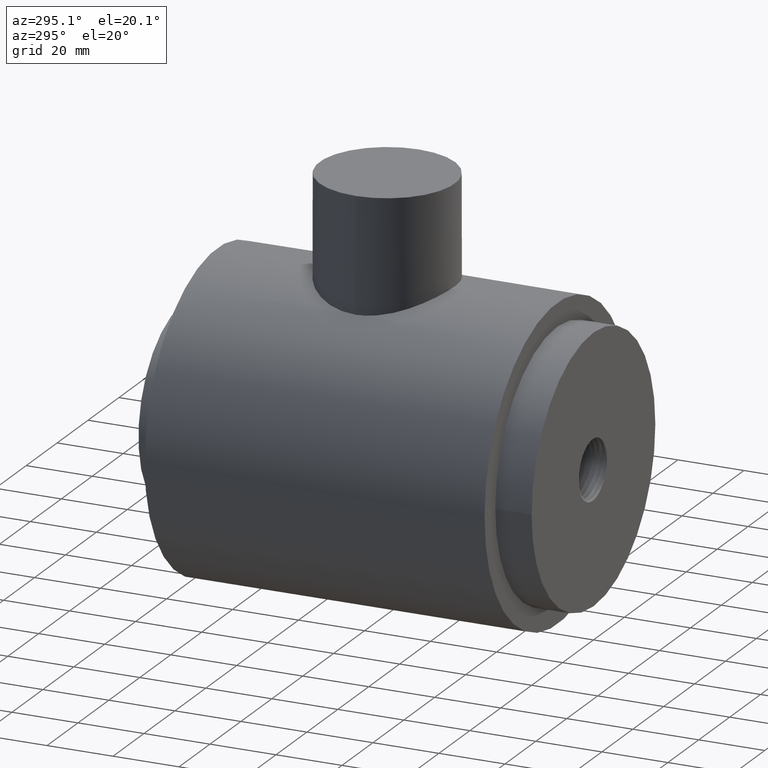
[diagram: clean part render]
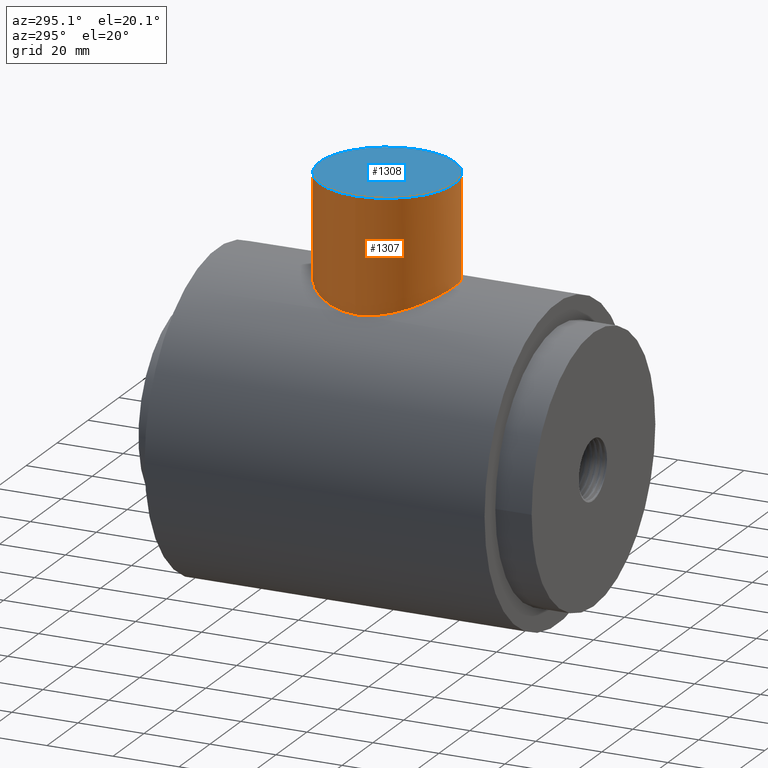
[diagram: same view with the hole feature highlighted: cylindrical wall and planar end face, labeled with their STEP entity ids]
A machine part, auxiliary view. The highlighted faces form one hole feature of diameter 41 mm: the cylindrical wall (entity #1307, orange) and its adjacent planar end face (entity #1308, blue) — they share a circular edge in the B-rep.
Wall:
#91=B_SPLINE_CURVE_WITH_KNOTS('',3,(#5733,#5734,#5735,#5736,#5737,#5738,
#5739,#5740,#5741,#5742,#5743,#5744,#5745,#5746,#5747,#5748,#5749,#5750,
#5751,#5752,#5753,#5754,#5755,#5756,#5757,#5758),.UNSPECIFIED.,.F.,.F.,
(4,2,2,2,2,2,2,2,2,2,2,2,4),(2.08150158605407,2.34044044380816,2.59937930156224,
3.11725701707041,3.64013009458928,3.90156663334871,4.16300317210814,4.42443971086757,
4.68587624962701,5.20874932714587,5.72662704265404,5.98556590040813,6.24450475816221),
 .UNSPECIFIED.);
#92=B_SPLINE_CURVE_WITH_KNOTS('',3,(#5762,#5763,#5764,#5765,#5766,#5767,
#5768,#5769,#5770,#5771,#5772,#5773,#5774,#5775,#5776,#5777,#5778,#5779,
#5780,#5781,#5782,#5783,#5784,#5785,#5786,#5787,#5788),.UNSPECIFIED.,.F.,
 .F.,(4,2,2,2,2,2,3,2,2,2,2,2,4),(6.24450475816221,6.5034436159163,6.76238247367038,
7.28026018917856,7.80313326669742,8.06456980545685,8.32600634421629,8.58744288297572,
8.84887942173515,9.37175249925401,9.88963021476219,10.1485690725163,10.4075079302704),
 .UNSPECIFIED.);
#93=B_SPLINE_CURVE_WITH_KNOTS('',3,(#5796,#5797,#5798,#5799,#5800,#5801,
#5802,#5803,#5804,#5805,#5806,#5807,#5808,#5809,#5810,#5811,#5812,#5813,
#5814,#5815,#5816,#5817,#5818,#5819,#5820,#5821,#5822,#5823,#5824,#5825,
#5826,#5827,#5828,#5829),.UNSPECIFIED.,.F.,.F.,(4,2,2,2,2,2,2,2,2,2,2,2,
2,2,2,2,4),(0.,0.39219322127822,0.784386442556441,1.17657966383466,1.56877288511288,
1.96038675340919,2.3520006217055,2.74361449000181,3.13522835829811,3.52684222659442,
3.91845609489073,4.31006996318704,4.70168383148335,5.09387705276157,5.48607027403979,
5.87826349531801,6.27045671659623),.UNSPECIFIED.);
#94=B_SPLINE_CURVE_WITH_KNOTS('',3,(#5830,#5831,#5832,#5833,#5834,#5835,
#5836,#5837,#5838,#5839,#5840,#5841,#5842,#5843,#5844,#5845,#5846,#5847,
#5848,#5849,#5850,#5851,#5852,#5853,#5854,#5855,#5856,#5857,#5858,#5859,
#5860,#5861,#5862,#5863),.UNSPECIFIED.,.F.,.F.,(4,2,2,2,2,2,2,2,2,2,2,2,
2,2,2,2,4),(6.27045671659623,6.66264993787445,7.05484315915267,7.44703638043089,
7.83922960170911,8.23084347000541,8.62245733830172,9.01407120659803,9.40568507489434,
9.79729894319065,10.188912811487,10.5805266797833,10.9721405480796,11.3643337693578,
11.756526990636,12.1487202119142,12.5409134331925),.UNSPECIFIED.);
#109=FACE_BOUND('',#296,.T.);
#210=FACE_OUTER_BOUND('',#295,.T.);
#295=EDGE_LOOP('',(#1157,#1158,#1159,#1160,#1161));
#296=EDGE_LOOP('',(#1162,#1163));
#389=LINE('',#5794,#473);
#473=VECTOR('',#1701,0.807086614173228);
#498=CIRCLE('',#1421,0.807086614173228);
#616=VERTEX_POINT('',#5731);
#617=VERTEX_POINT('',#5732);
#619=VERTEX_POINT('',#5791);
#620=VERTEX_POINT('',#5793);
#621=VERTEX_POINT('',#5795);
#798=EDGE_CURVE('',#616,#617,#91,.T.);
#801=EDGE_CURVE('',#617,#616,#92,.T.);
#802=EDGE_CURVE('',#619,#619,#498,.T.);
#803=EDGE_CURVE('',#619,#620,#389,.T.);
#804=EDGE_CURVE('',#621,#620,#93,.T.);
#805=EDGE_CURVE('',#620,#621,#94,.T.);
#1157=ORIENTED_EDGE('',*,*,#802,.F.);
#1158=ORIENTED_EDGE('',*,*,#803,.T.);
#1159=ORIENTED_EDGE('',*,*,#804,.F.);
#1160=ORIENTED_EDGE('',*,*,#805,.F.);
#1161=ORIENTED_EDGE('',*,*,#803,.F.);
#1162=ORIENTED_EDGE('',*,*,#798,.T.);
#1163=ORIENTED_EDGE('',*,*,#801,.T.);
#1233=CYLINDRICAL_SURFACE('',#1420,0.807086614173228);
#1307=ADVANCED_FACE('',(#210,#109),#1233,.T.);
#1420=AXIS2_PLACEMENT_3D('',#5790,#1697,#1698);
#1421=AXIS2_PLACEMENT_3D('',#5792,#1699,#1700);
#1697=DIRECTION('center_axis',(0.,0.,1.));
#1698=DIRECTION('ref_axis',(1.,0.,0.));
#1699=DIRECTION('center_axis',(0.,0.,1.));
#1700=DIRECTION('ref_axis',(1.,0.,0.));
#1701=DIRECTION('',(0.,0.,-1.));
#5731=CARTESIAN_POINT('',(0.807086614173229,2.46062992125984,2.9251968503937));
#5732=CARTESIAN_POINT('',(0.807086614173229,2.46062992125984,1.87795275590551));
#5733=CARTESIAN_POINT('Ctrl Pts',(0.807086614173228,2.46062992125984,2.9251968503937));
#5734=CARTESIAN_POINT('Ctrl Pts',(0.807086614173228,2.49461139865539,2.9251968503937));
#5735=CARTESIAN_POINT('Ctrl Pts',(0.804892575235416,2.52942933306709,2.92183556056006));
#5736=CARTESIAN_POINT('Ctrl Pts',(0.796054055324587,2.59804665142261,2.90805407916114));
#5737=CARTESIAN_POINT('Ctrl Pts',(0.789414663972881,2.63184780554451,2.8976394381686));
#5738=CARTESIAN_POINT('Ctrl Pts',(0.764319866982764,2.72823601625747,2.8570191443441));
#5739=CARTESIAN_POINT('Ctrl Pts',(0.74045315171569,2.78574377789112,2.81697434728849));
#5740=CARTESIAN_POINT('Ctrl Pts',(0.693614582431741,2.8764649057353,2.72625321944432));
#5741=CARTESIAN_POINT('Ctrl Pts',(0.667052238342782,2.91621733421141,2.6688478173071));
#5742=CARTESIAN_POINT('Ctrl Pts',(0.63690790475914,2.95663357002237,2.57293419335656));
#5743=CARTESIAN_POINT('Ctrl Pts',(0.628520918396347,2.96701945274968,2.53931075041655));
#5744=CARTESIAN_POINT('Ctrl Pts',(0.617136934627805,2.98083267705337,2.47078925846913));
#5745=CARTESIAN_POINT('Ctrl Pts',(0.614173228346457,2.98425196850394,2.43588406020465));
#5746=CARTESIAN_POINT('Ctrl Pts',(0.614173228346457,2.98425196850394,2.36726554609456));
#5747=CARTESIAN_POINT('Ctrl Pts',(0.617136934627805,2.98083267705337,2.33236034783009));
#5748=CARTESIAN_POINT('Ctrl Pts',(0.628520918396346,2.96701945274968,2.26383885588266));
#5749=CARTESIAN_POINT('Ctrl Pts',(0.63690790475914,2.95663357002237,2.23021541294266));
#5750=CARTESIAN_POINT('Ctrl Pts',(0.667052238342781,2.91621733421141,2.13430178899211));
#5751=CARTESIAN_POINT('Ctrl Pts',(0.693614582431741,2.8764649057353,2.0768963868549));
#5752=CARTESIAN_POINT('Ctrl Pts',(0.74045315171569,2.78574377789112,1.98617525901072));
#5753=CARTESIAN_POINT('Ctrl Pts',(0.764319866982764,2.72823601625747,1.94613046195511));
#5754=CARTESIAN_POINT('Ctrl Pts',(0.789414663972881,2.63184780554451,1.90551016813061));
#5755=CARTESIAN_POINT('Ctrl Pts',(0.796054055324587,2.59804665142261,1.89509552713807));
#5756=CARTESIAN_POINT('Ctrl Pts',(0.804892575235416,2.52942933306709,1.88131404573915));
#5757=CARTESIAN_POINT('Ctrl Pts',(0.807086614173228,2.49461139865539,1.87795275590551));
#5758=CARTESIAN_POINT('Ctrl Pts',(0.807086614173228,2.46062992125984,1.87795275590551));
#5762=CARTESIAN_POINT('Ctrl Pts',(0.807086614173228,2.46062992125984,1.87795275590551));
#5763=CARTESIAN_POINT('Ctrl Pts',(0.807086614173228,2.42664844386429,1.87795275590551));
#5764=CARTESIAN_POINT('Ctrl Pts',(0.804892575235416,2.3918305094526,1.88131404573915));
#5765=CARTESIAN_POINT('Ctrl Pts',(0.796054055324587,2.32321319109708,1.89509552713807));
#5766=CARTESIAN_POINT('Ctrl Pts',(0.789414663972881,2.28941203697518,1.90551016813061));
#5767=CARTESIAN_POINT('Ctrl Pts',(0.764319866982764,2.19302382626221,1.94613046195511));
#5768=CARTESIAN_POINT('Ctrl Pts',(0.74045315171569,2.13551606462856,1.98617525901072));
#5769=CARTESIAN_POINT('Ctrl Pts',(0.693614582431741,2.04479493678439,2.0768963868549));
#5770=CARTESIAN_POINT('Ctrl Pts',(0.667052238342782,2.00504250830827,2.13430178899211));
#5771=CARTESIAN_POINT('Ctrl Pts',(0.63690790475914,1.96462627249731,2.23021541294266));
#5772=CARTESIAN_POINT('Ctrl Pts',(0.628520918396346,1.95424038977,2.26383885588266));
#5773=CARTESIAN_POINT('Ctrl Pts',(0.617136934627805,1.94042716546632,2.33236034783009));
#5774=CARTESIAN_POINT('Ctrl Pts',(0.614173228346457,1.93700787401575,2.36726554609456));
#5775=CARTESIAN_POINT('Ctrl Pts',(0.614173228346457,1.93700787401575,2.40157480314961));
#5776=CARTESIAN_POINT('Ctrl Pts',(0.614173228346457,1.93700787401575,2.43588406020465));
#5777=CARTESIAN_POINT('Ctrl Pts',(0.617136934627805,1.94042716546632,2.47078925846913));
#5778=CARTESIAN_POINT('Ctrl Pts',(0.628520918396346,1.95424038977,2.53931075041655));
#5779=CARTESIAN_POINT('Ctrl Pts',(0.63690790475914,1.96462627249731,2.57293419335656));
#5780=CARTESIAN_POINT('Ctrl Pts',(0.667052238342782,2.00504250830827,2.6688478173071));
#5781=CARTESIAN_POINT('Ctrl Pts',(0.693614582431741,2.04479493678439,2.72625321944432));
#5782=CARTESIAN_POINT('Ctrl Pts',(0.74045315171569,2.13551606462856,2.81697434728849));
#5783=CARTESIAN_POINT('Ctrl Pts',(0.764319866982764,2.19302382626221,2.8570191443441));
#5784=CARTESIAN_POINT('Ctrl Pts',(0.789414663972881,2.28941203697517,2.8976394381686));
#5785=CARTESIAN_POINT('Ctrl Pts',(0.796054055324587,2.32321319109708,2.90805407916114));
#5786=CARTESIAN_POINT('Ctrl Pts',(0.804892575235416,2.3918305094526,2.92183556056006));
#5787=CARTESIAN_POINT('Ctrl Pts',(0.807086614173228,2.42664844386429,2.9251968503937));
#5788=CARTESIAN_POINT('Ctrl Pts',(0.807086614173228,2.46062992125984,2.9251968503937));
#5790=CARTESIAN_POINT('Origin',(5.3380105545221E-32,2.46062992125984,0.));
#5791=CARTESIAN_POINT('',(-0.807086614173228,2.46062992125984,3.03149606299213));
#5792=CARTESIAN_POINT('Origin',(5.3380105545221E-32,2.46062992125984,3.03149606299213));
#5793=CARTESIAN_POINT('',(-0.807086614173228,2.46062992125984,1.66510301337067));
#5794=CARTESIAN_POINT('',(-0.807086614173228,2.46062992125984,0.));
#5795=CARTESIAN_POINT('',(0.807086614173228,2.46062992125984,1.66510301337067));
#5796=CARTESIAN_POINT('Ctrl Pts',(0.807086614173228,2.46062992125984,1.66510301337067));
#5797=CARTESIAN_POINT('Ctrl Pts',(0.807086614173228,2.40916099458291,1.66510301337067));
#5798=CARTESIAN_POINT('Ctrl Pts',(0.802084784334732,2.35620058023945,1.66755777393839));
#5799=CARTESIAN_POINT('Ctrl Pts',(0.781309439414592,2.25134292016892,1.67739216946167));
#5800=CARTESIAN_POINT('Ctrl Pts',(0.765543292032329,2.19944296352252,1.68475845798413));
#5801=CARTESIAN_POINT('Ctrl Pts',(0.724169357321344,2.10027731190028,1.70295221650003));
#5802=CARTESIAN_POINT('Ctrl Pts',(0.698528755250808,2.05291959173878,1.71377227827277));
#5803=CARTESIAN_POINT('Ctrl Pts',(0.639532518726629,1.96548520250776,1.73665079995064));
#5804=CARTESIAN_POINT('Ctrl Pts',(0.606170119998836,1.92540720548512,1.74868673592672));
#5805=CARTESIAN_POINT('Ctrl Pts',(0.535275117993793,1.85451220348007,1.77167264393117));
#5806=CARTESIAN_POINT('Ctrl Pts',(0.495222555664146,1.82115675214401,1.78346410624794));
#5807=CARTESIAN_POINT('Ctrl Pts',(0.407775967090191,1.76213863680678,1.80546624408741));
#5808=CARTESIAN_POINT('Ctrl Pts',(0.360380460333249,1.73647137685438,1.81565870324636));
#5809=CARTESIAN_POINT('Ctrl Pts',(0.261137483685962,1.69506679489168,1.83256591112662));
#5810=CARTESIAN_POINT('Ctrl Pts',(0.209198998711224,1.67929652158112,1.83928301433812));
#5811=CARTESIAN_POINT('Ctrl Pts',(0.10432758524625,1.65853151240926,1.84819965990006));
#5812=CARTESIAN_POINT('Ctrl Pts',(0.0513928961018777,1.65354330708661,1.8503937007874));
#5813=CARTESIAN_POINT('Ctrl Pts',(-0.0513928961018777,1.65354330708661,
1.8503937007874));
#5814=CARTESIAN_POINT('Ctrl Pts',(-0.10432758524625,1.65853151240926,1.84819965990006));
#5815=CARTESIAN_POINT('Ctrl Pts',(-0.209198998711224,1.67929652158112,1.83928301433812));
#5816=CARTESIAN_POINT('Ctrl Pts',(-0.261137483685962,1.69506679489168,1.83256591112662));
#5817=CARTESIAN_POINT('Ctrl Pts',(-0.360380460333249,1.73647137685438,1.81565870324636));
#5818=CARTESIAN_POINT('Ctrl Pts',(-0.407775967090191,1.76213863680678,1.80546624408741));
#5819=CARTESIAN_POINT('Ctrl Pts',(-0.495222555664146,1.82115675214401,1.78346410624794));
#5820=CARTESIAN_POINT('Ctrl Pts',(-0.535275117993793,1.85451220348007,1.77167264393117));
#5821=CARTESIAN_POINT('Ctrl Pts',(-0.606170119998835,1.92540720548512,1.74868673592672));
#5822=CARTESIAN_POINT('Ctrl Pts',(-0.639532518726628,1.96548520250776,1.73665079995064));
#5823=CARTESIAN_POINT('Ctrl Pts',(-0.698528755250807,2.05291959173878,1.71377227827277));
#5824=CARTESIAN_POINT('Ctrl Pts',(-0.724169357321344,2.10027731190028,1.70295221650003));
#5825=CARTESIAN_POINT('Ctrl Pts',(-0.765543292032329,2.19944296352252,1.68475845798413));
#5826=CARTESIAN_POINT('Ctrl Pts',(-0.781309439414592,2.25134292016892,1.67739216946167));
#5827=CARTESIAN_POINT('Ctrl Pts',(-0.802084784334732,2.35620058023945,1.66755777393839));
#5828=CARTESIAN_POINT('Ctrl Pts',(-0.807086614173228,2.40916099458291,1.66510301337067));
#5829=CARTESIAN_POINT('Ctrl Pts',(-0.807086614173228,2.46062992125984,1.66510301337067));
#5830=CARTESIAN_POINT('Ctrl Pts',(-0.807086614173228,2.46062992125984,1.66510301337067));
#5831=CARTESIAN_POINT('Ctrl Pts',(-0.807086614173228,2.51209884793677,1.66510301337067));
#5832=CARTESIAN_POINT('Ctrl Pts',(-0.802084784334732,2.56505926228023,1.66755777393839));
#5833=CARTESIAN_POINT('Ctrl Pts',(-0.781309439414592,2.66991692235076,1.67739216946167));
#5834=CARTESIAN_POINT('Ctrl Pts',(-0.765543292032329,2.72181687899717,1.68475845798413));
#5835=CARTESIAN_POINT('Ctrl Pts',(-0.724169357321344,2.82098253061941,1.70295221650003));
#5836=CARTESIAN_POINT('Ctrl Pts',(-0.698528755250808,2.8683402507809,1.71377227827277));
#5837=CARTESIAN_POINT('Ctrl Pts',(-0.639532518726628,2.95577464001193,1.73665079995064));
#5838=CARTESIAN_POINT('Ctrl Pts',(-0.606170119998836,2.99585263703457,1.74868673592672));
#5839=CARTESIAN_POINT('Ctrl Pts',(-0.535275117993793,3.06674763903961,1.77167264393117));
#5840=CARTESIAN_POINT('Ctrl Pts',(-0.495222555664147,3.10010309037567,1.78346410624794));
#5841=CARTESIAN_POINT('Ctrl Pts',(-0.407775967090191,3.15912120571291,1.80546624408741));
#5842=CARTESIAN_POINT('Ctrl Pts',(-0.360380460333249,3.18478846566531,1.81565870324636));
#5843=CARTESIAN_POINT('Ctrl Pts',(-0.261137483685962,3.226193047628,1.83256591112662));
#5844=CARTESIAN_POINT('Ctrl Pts',(-0.209198998711224,3.24196332093857,1.83928301433812));
#5845=CARTESIAN_POINT('Ctrl Pts',(-0.104327585246249,3.26272833011042,1.84819965990006));
#5846=CARTESIAN_POINT('Ctrl Pts',(-0.0513928961018778,3.26771653543307,
1.8503937007874));
#5847=CARTESIAN_POINT('Ctrl Pts',(0.0513928961018775,3.26771653543307,1.8503937007874));
#5848=CARTESIAN_POINT('Ctrl Pts',(0.104327585246249,3.26272833011042,1.84819965990006));
#5849=CARTESIAN_POINT('Ctrl Pts',(0.209198998711224,3.24196332093857,1.83928301433812));
#5850=CARTESIAN_POINT('Ctrl Pts',(0.261137483685962,3.226193047628,1.83256591112662));
#5851=CARTESIAN_POINT('Ctrl Pts',(0.360380460333249,3.18478846566531,1.81565870324636));
#5852=CARTESIAN_POINT('Ctrl Pts',(0.407775967090191,3.15912120571291,1.80546624408741));
#5853=CARTESIAN_POINT('Ctrl Pts',(0.495222555664146,3.10010309037567,1.78346410624794));
#5854=CARTESIAN_POINT('Ctrl Pts',(0.535275117993793,3.06674763903961,1.77167264393117));
#5855=CARTESIAN_POINT('Ctrl Pts',(0.606170119998836,2.99585263703457,1.74868673592672));
#5856=CARTESIAN_POINT('Ctrl Pts',(0.639532518726628,2.95577464001193,1.73665079995064));
#5857=CARTESIAN_POINT('Ctrl Pts',(0.698528755250808,2.8683402507809,1.71377227827277));
#5858=CARTESIAN_POINT('Ctrl Pts',(0.724169357321344,2.82098253061941,1.70295221650003));
#5859=CARTESIAN_POINT('Ctrl Pts',(0.765543292032329,2.72181687899717,1.68475845798413));
#5860=CARTESIAN_POINT('Ctrl Pts',(0.781309439414592,2.66991692235076,1.67739216946167));
#5861=CARTESIAN_POINT('Ctrl Pts',(0.802084784334732,2.56505926228023,1.66755777393839));
#5862=CARTESIAN_POINT('Ctrl Pts',(0.807086614173228,2.51209884793677,1.66510301337067));
#5863=CARTESIAN_POINT('Ctrl Pts',(0.807086614173228,2.46062992125984,1.66510301337067));
End face:
#136=PLANE('',#1422);
#211=FACE_OUTER_BOUND('',#297,.T.);
#297=EDGE_LOOP('',(#1164));
#498=CIRCLE('',#1421,0.807086614173228);
#619=VERTEX_POINT('',#5791);
#802=EDGE_CURVE('',#619,#619,#498,.T.);
#1164=ORIENTED_EDGE('',*,*,#802,.T.);
#1308=ADVANCED_FACE('',(#211),#136,.T.);
#1421=AXIS2_PLACEMENT_3D('',#5792,#1699,#1700);
#1422=AXIS2_PLACEMENT_3D('',#5864,#1702,#1703);
#1699=DIRECTION('center_axis',(0.,0.,1.));
#1700=DIRECTION('ref_axis',(1.,0.,0.));
#1702=DIRECTION('center_axis',(0.,0.,1.));
#1703=DIRECTION('ref_axis',(1.,0.,0.));
#5791=CARTESIAN_POINT('',(-0.807086614173228,2.46062992125984,3.03149606299213));
#5792=CARTESIAN_POINT('Origin',(5.3380105545221E-32,2.46062992125984,3.03149606299213));
#5864=CARTESIAN_POINT('Origin',(0.,2.46062992125984,3.03149606299213));